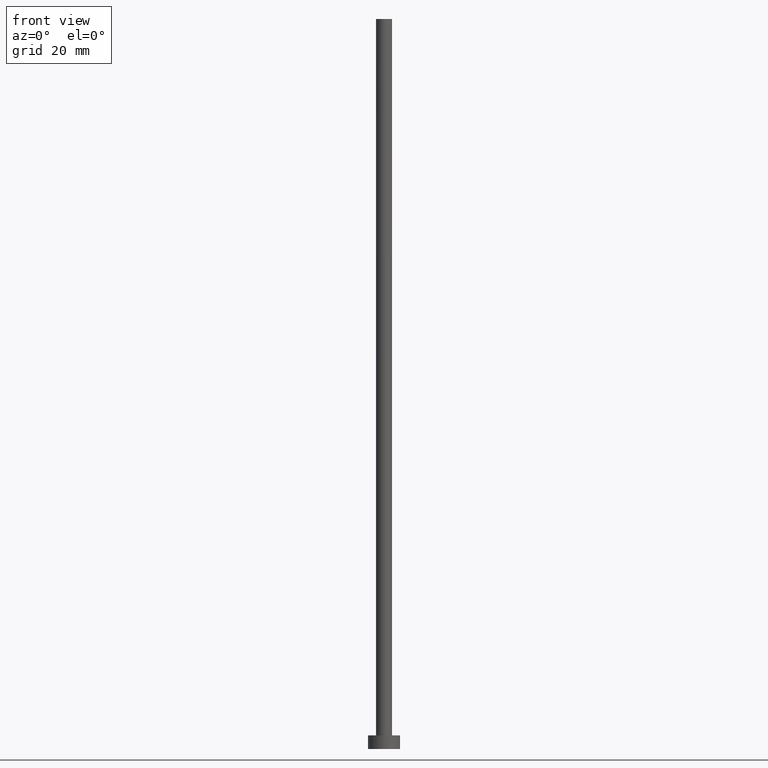
[diagram: clean part render]
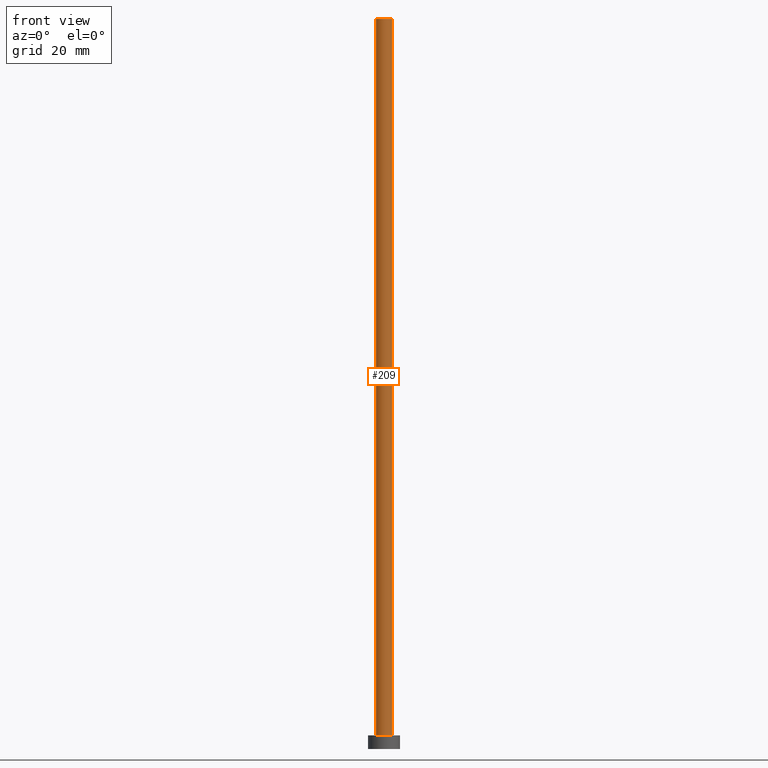
[diagram: same view with one face highlighted and labeled with its STEP entity id]
A machine part, front view. The second image highlights one B-rep face of the part: STEP entity #209.
In plain terms, the highlighted cylindrical surface (edge-blend (fillet) strip) has radius 1.75 mm, axis along (-0, -0, -1).
Its self-contained STEP definition (entity closure, byte-faithful):
#1 = ORIENTED_EDGE ( 'NONE', *, *, #126, .F. ) ;
#8 = DIRECTION ( 'NONE',  ( -0.000000000000000000, -0.000000000000000000, -1.000000000000000000 ) ) ;
#19 = DIRECTION ( 'NONE',  ( 1.000000000000000000, 0.000000000000000000, 0.000000000000000000 ) ) ;
#24 = VERTEX_POINT ( 'NONE', #84 ) ;
#32 = AXIS2_PLACEMENT_3D ( 'NONE', #33, #106, #19 ) ;
#33 = CARTESIAN_POINT ( 'NONE',  ( 0.000000000000000000, 0.000000000000000000, 160.0000000000000000 ) ) ;
#51 = CARTESIAN_POINT ( 'NONE',  ( 1.750000000000000000, 2.143131898507868297E-16, 3.000000000000000000 ) ) ;
#53 = DIRECTION ( 'NONE',  ( -0.000000000000000000, -0.000000000000000000, -1.000000000000000000 ) ) ;
#61 = DIRECTION ( 'NONE',  ( -0.000000000000000000, -0.000000000000000000, -1.000000000000000000 ) ) ;
#77 = VECTOR ( 'NONE', #53, 1000.000000000000000 ) ;
#84 = CARTESIAN_POINT ( 'NONE',  ( -1.750000000000000000, 0.000000000000000000, 160.0000000000000000 ) ) ;
#86 = DIRECTION ( 'NONE',  ( -1.000000000000000000, 0.000000000000000000, 0.000000000000000000 ) ) ;
#99 = DIRECTION ( 'NONE',  ( 0.000000000000000000, 0.000000000000000000, 1.000000000000000000 ) ) ;
#101 = CARTESIAN_POINT ( 'NONE',  ( 0.000000000000000000, 0.000000000000000000, 3.000000000000000000 ) ) ;
#103 = CARTESIAN_POINT ( 'NONE',  ( -1.750000000000000000, 0.000000000000000000, 3.000000000000000000 ) ) ;
#105 = CIRCLE ( 'NONE', #32, 1.750000000000000000 ) ;
#106 = DIRECTION ( 'NONE',  ( 0.000000000000000000, 0.000000000000000000, 1.000000000000000000 ) ) ;
#109 = VERTEX_POINT ( 'NONE', #51 ) ;
#112 = ORIENTED_EDGE ( 'NONE', *, *, #227, .T. ) ;
#125 = LINE ( 'NONE', #192, #77 ) ;
#126 = EDGE_CURVE ( 'NONE', #24, #199, #105, .T. ) ;
#134 = VERTEX_POINT ( 'NONE', #103 ) ;
#141 = CYLINDRICAL_SURFACE ( 'NONE', #228, 1.750000000000000000 ) ;
#148 = CARTESIAN_POINT ( 'NONE',  ( -1.750000000000000000, 0.000000000000000000, 160.0000000000000000 ) ) ;
#158 = EDGE_CURVE ( 'NONE', #199, #109, #125, .T. ) ;
#163 = DIRECTION ( 'NONE',  ( 1.000000000000000000, 0.000000000000000000, 0.000000000000000000 ) ) ;
#171 = EDGE_CURVE ( 'NONE', #134, #109, #242, .T. ) ;
#172 = EDGE_LOOP ( 'NONE', ( #197, #1, #112, #182 ) ) ;
#178 = VECTOR ( 'NONE', #8, 1000.000000000000000 ) ;
#182 = ORIENTED_EDGE ( 'NONE', *, *, #171, .T. ) ;
#192 = CARTESIAN_POINT ( 'NONE',  ( 1.750000000000000000, 2.143131898507868297E-16, 160.0000000000000000 ) ) ;
#194 = FACE_OUTER_BOUND ( 'NONE', #172, .T. ) ;
#197 = ORIENTED_EDGE ( 'NONE', *, *, #158, .F. ) ;
#198 = LINE ( 'NONE', #148, #178 ) ;
#199 = VERTEX_POINT ( 'NONE', #216 ) ;
#209 = ADVANCED_FACE ( 'NONE', ( #194 ), #141, .T. ) ;
#216 = CARTESIAN_POINT ( 'NONE',  ( 1.750000000000000000, 2.143131898507868297E-16, 160.0000000000000000 ) ) ;
#218 = AXIS2_PLACEMENT_3D ( 'NONE', #101, #99, #163 ) ;
#227 = EDGE_CURVE ( 'NONE', #24, #134, #198, .T. ) ;
#228 = AXIS2_PLACEMENT_3D ( 'NONE', #249, #61, #86 ) ;
#242 = CIRCLE ( 'NONE', #218, 1.750000000000000000 ) ;
#249 = CARTESIAN_POINT ( 'NONE',  ( 0.000000000000000000, 0.000000000000000000, 160.0000000000000000 ) ) ;